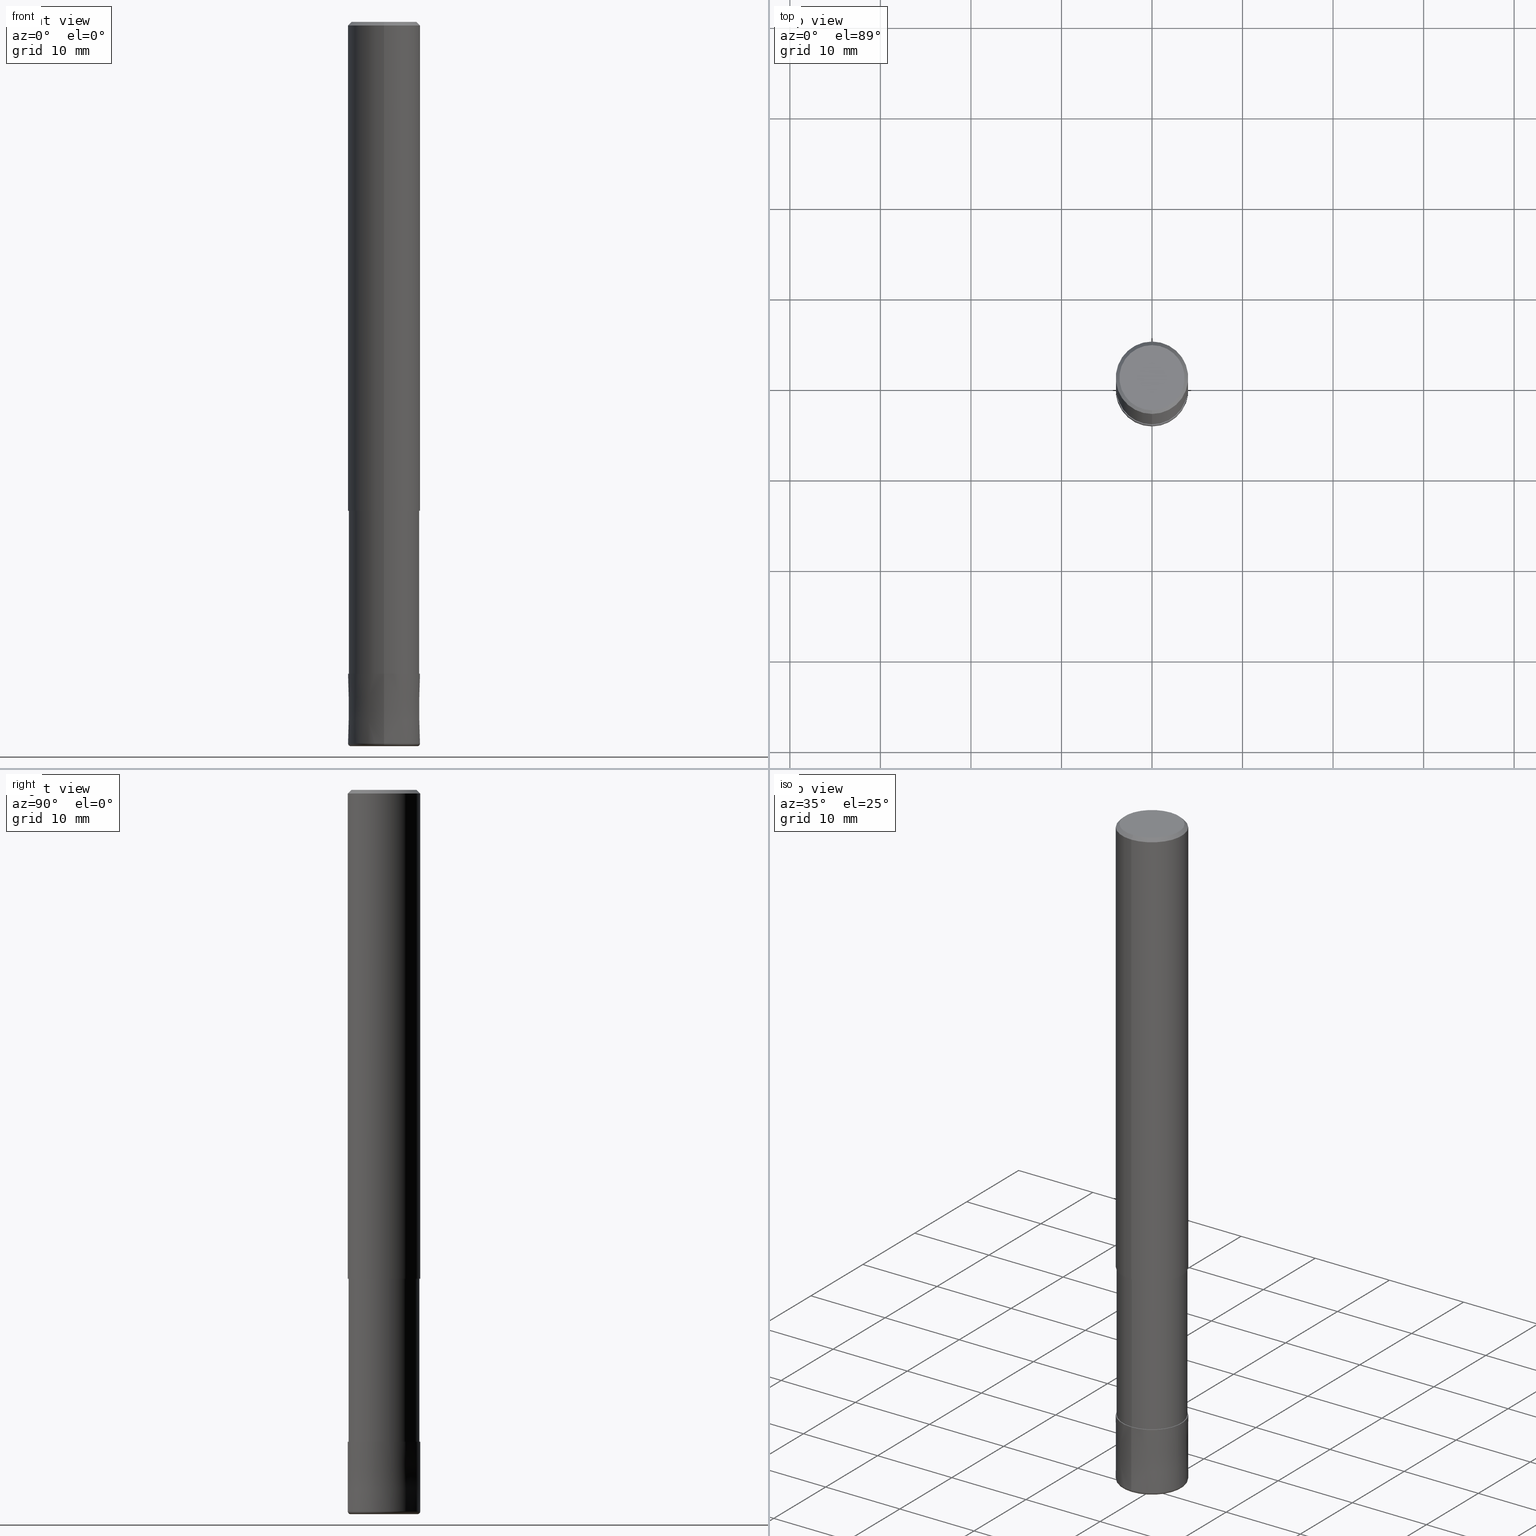
[diagram: canonical four-view strip — front | top / right | iso, engineering-drawing reading convention]
A machine part, canonical four-view strip (front | top / right | iso — engineering-drawing reading convention). The complete STEP part file that produces these views, byte-faithful:
ISO-10303-21;
HEADER;
FILE_DESCRIPTION(('no description'),'unknown implementation level');
FILE_NAME('HHRS6080-03-260-Huellk.stp','  ',('CIMSOURCE GmbH'),('CADClick - KiM GmbH - www.kimweb.de'),'unknown preprocess','ACIS','unknown authorization');
FILE_SCHEMA(('automotive_design'));
ENDSEC;
DATA;
#1=MECHANICAL_DESIGN_GEOMETRIC_PRESENTATION_REPRESENTATION(' ',(#14,#15,#16,#17,#18,#19,#20,#21,#22,#23,#24,#25,#26,#27,#28,#29,#30,#31,#32,#33,#34,#35,#36,#37,#38,#39,#40,#41,#42,#43,#44,#45,#46,#47,#48,#49,#50,#51,#52,#53,#54,#55,#56,#57,#58,#59,#60,#61,#62,#63,#64,#65,#66,#67,#68,#69,#70,#71,#72,#73,#74,#75,#76,#77,#78,#79,#80,#81,#82,#83,#84,#85,#86,#87,#88,#89,#90,#91,#92,#93,#94,#95,#96,#97),#10);
#2=PRODUCT_DEFINITION_CONTEXT('',#98,'design');
#3=APPLICATION_PROTOCOL_DEFINITION('INTERNATIONAL STANDARD','automotive_design',1994,#98);
#4=PRODUCT_CATEGORY_RELATIONSHIP('NONE','NONE',#99,#100);
#5=SHAPE_DEFINITION_REPRESENTATION(#101,#102);
#6=PRODUCT_DEFINITION_CONTEXT('',#103,'design');
#7=APPLICATION_PROTOCOL_DEFINITION('INTERNATIONAL STANDARD','automotive_design',1994,#103);
#8=PRODUCT_CATEGORY_RELATIONSHIP('NONE','NONE',#104,#105);
#9=SHAPE_DEFINITION_REPRESENTATION(#106,#107);
#10= (GEOMETRIC_REPRESENTATION_CONTEXT(3)GLOBAL_UNCERTAINTY_ASSIGNED_CONTEXT((#110))GLOBAL_UNIT_ASSIGNED_CONTEXT((#112,#113,#114))REPRESENTATION_CONTEXT('NONE','WORKSPACE'));
#14=STYLED_ITEM('',(#116),#117);
#15=STYLED_ITEM('',(#118),#119);
#16=STYLED_ITEM('',(#120),#121);
#17=STYLED_ITEM('',(#122),#123);
#18=STYLED_ITEM('',(#124),#125);
#19=STYLED_ITEM('',(#126),#127);
#20=STYLED_ITEM('',(#128),#129);
#21=STYLED_ITEM('',(#130),#131);
#22=STYLED_ITEM('',(#132),#133);
#23=STYLED_ITEM('',(#134),#135);
#24=STYLED_ITEM('',(#136),#137);
#25=STYLED_ITEM('',(#138),#139);
#26=STYLED_ITEM('',(#140),#141);
#27=STYLED_ITEM('',(#142),#143);
#28=STYLED_ITEM('',(#144),#145);
#29=STYLED_ITEM('',(#146),#147);
#30=STYLED_ITEM('',(#148),#149);
#31=STYLED_ITEM('',(#150),#151);
#32=STYLED_ITEM('',(#152),#153);
#33=STYLED_ITEM('',(#154),#155);
#34=STYLED_ITEM('',(#156),#157);
#35=STYLED_ITEM('',(#158),#159);
#36=STYLED_ITEM('',(#160),#161);
#37=STYLED_ITEM('',(#162),#163);
#38=STYLED_ITEM('',(#164),#165);
#39=STYLED_ITEM('',(#166),#167);
#40=STYLED_ITEM('',(#168),#169);
#41=STYLED_ITEM('',(#170),#171);
#42=STYLED_ITEM('',(#172),#173);
#43=STYLED_ITEM('',(#174),#175);
#44=STYLED_ITEM('',(#176),#177);
#45=STYLED_ITEM('',(#178),#179);
#46=STYLED_ITEM('',(#180),#181);
#47=STYLED_ITEM('',(#182),#183);
#48=STYLED_ITEM('',(#184),#185);
#49=STYLED_ITEM('',(#186),#187);
#50=STYLED_ITEM('',(#188),#189);
#51=STYLED_ITEM('',(#190),#191);
#52=STYLED_ITEM('',(#192),#193);
#53=STYLED_ITEM('',(#194),#195);
#54=STYLED_ITEM('',(#196),#197);
#55=STYLED_ITEM('',(#198),#199);
#56=STYLED_ITEM('',(#200),#201);
#57=STYLED_ITEM('',(#202),#203);
#58=STYLED_ITEM('',(#204),#205);
#59=STYLED_ITEM('',(#206),#207);
#60=STYLED_ITEM('',(#208),#209);
#61=STYLED_ITEM('',(#210),#211);
#62=STYLED_ITEM('',(#212),#213);
#63=STYLED_ITEM('',(#214),#215);
#64=STYLED_ITEM('',(#216),#217);
#65=STYLED_ITEM('',(#218),#219);
#66=STYLED_ITEM('',(#220),#221);
#67=STYLED_ITEM('',(#222),#223);
#68=STYLED_ITEM('',(#224),#225);
#69=STYLED_ITEM('',(#226),#227);
#70=STYLED_ITEM('',(#228),#229);
#71=STYLED_ITEM('',(#230),#231);
#72=STYLED_ITEM('',(#232),#233);
#73=STYLED_ITEM('',(#234),#235);
#74=STYLED_ITEM('',(#236),#237);
#75=STYLED_ITEM('',(#238),#239);
#76=STYLED_ITEM('',(#240),#241);
#77=STYLED_ITEM('',(#242),#243);
#78=STYLED_ITEM('',(#244),#245);
#79=STYLED_ITEM('',(#246),#247);
#80=STYLED_ITEM('',(#248),#249);
#81=STYLED_ITEM('',(#250),#251);
#82=STYLED_ITEM('',(#252),#253);
#83=STYLED_ITEM('',(#254),#255);
#84=STYLED_ITEM('',(#256),#257);
#85=STYLED_ITEM('',(#258),#259);
#86=STYLED_ITEM('',(#260),#261);
#87=STYLED_ITEM('',(#262),#263);
#88=STYLED_ITEM('',(#264),#265);
#89=STYLED_ITEM('',(#266),#267);
#90=STYLED_ITEM('',(#268),#269);
#91=STYLED_ITEM('',(#270),#271);
#92=STYLED_ITEM('',(#272),#273);
#93=STYLED_ITEM('',(#274),#275);
#94=STYLED_ITEM('',(#276),#277);
#95=STYLED_ITEM('',(#278),#279);
#96=STYLED_ITEM('',(#280),#281);
#97=STYLED_ITEM('',(#282),#283);
#98=APPLICATION_CONTEXT(' ');
#99=PRODUCT_CATEGORY('part','NONE');
#100=PRODUCT_RELATED_PRODUCT_CATEGORY('detail',' ',(#284));
#101=PRODUCT_DEFINITION_SHAPE('NONE','NONE',#285);
#102=ADVANCED_BREP_SHAPE_REPRESENTATION('1',(#253,#286),#10);
#103=APPLICATION_CONTEXT(' ');
#104=PRODUCT_CATEGORY('part','NONE');
#105=PRODUCT_RELATED_PRODUCT_CATEGORY('detail',' ',(#287));
#106=PRODUCT_DEFINITION_SHAPE('NONE','NONE',#288);
#107=ADVANCED_BREP_SHAPE_REPRESENTATION('2',(#211,#289),#10);
#110=UNCERTAINTY_MEASURE_WITH_UNIT(LENGTH_MEASURE(1.0E-006),#112,'','');
#112= (CONVERSION_BASED_UNIT('MILLIMETRE',#292)LENGTH_UNIT()NAMED_UNIT(#295));
#113= (NAMED_UNIT(#297)PLANE_ANGLE_UNIT()SI_UNIT($,.RADIAN.));
#114= (NAMED_UNIT(#297)SOLID_ANGLE_UNIT()SI_UNIT($,.STERADIAN.));
#116=PRESENTATION_STYLE_ASSIGNMENT((#303));
#117=VERTEX_POINT('',#304);
#118=PRESENTATION_STYLE_ASSIGNMENT((#305));
#119=EDGE_CURVE('',#231,#205,#306,.T.);
#120=PRESENTATION_STYLE_ASSIGNMENT((#307));
#121=EDGE_CURVE('',#127,#221,#308,.T.);
#122=PRESENTATION_STYLE_ASSIGNMENT((#309));
#123=EDGE_CURVE('',#245,#271,#310,.T.);
#124=PRESENTATION_STYLE_ASSIGNMENT((#311));
#125=ADVANCED_FACE('',(#312),#313,.F.);
#126=PRESENTATION_STYLE_ASSIGNMENT((#314));
#127=VERTEX_POINT('',#315);
#128=PRESENTATION_STYLE_ASSIGNMENT((#316));
#129=VERTEX_POINT('',#317);
#130=PRESENTATION_STYLE_ASSIGNMENT((#318));
#131=EDGE_CURVE('',#281,#221,#319,.T.);
#132=PRESENTATION_STYLE_ASSIGNMENT((#320));
#133=EDGE_CURVE('',#223,#273,#321,.T.);
#134=PRESENTATION_STYLE_ASSIGNMENT((#322));
#135=ADVANCED_FACE('',(#323,#324),#325,.T.);
#136=PRESENTATION_STYLE_ASSIGNMENT((#326));
#137=ADVANCED_FACE('',(#327),#328,.T.);
#138=PRESENTATION_STYLE_ASSIGNMENT((#329));
#139=EDGE_CURVE('',#191,#213,#330,.T.);
#140=PRESENTATION_STYLE_ASSIGNMENT((#331));
#141=EDGE_CURVE('',#257,#117,#332,.T.);
#142=PRESENTATION_STYLE_ASSIGNMENT((#333));
#143=EDGE_CURVE('',#281,#117,#334,.T.);
#144=PRESENTATION_STYLE_ASSIGNMENT((#335));
#145=ADVANCED_FACE('',(#336),#337,.T.);
#146=PRESENTATION_STYLE_ASSIGNMENT((#338));
#147=EDGE_CURVE('',#203,#245,#339,.T.);
#148=PRESENTATION_STYLE_ASSIGNMENT((#340));
#149=VERTEX_POINT('',#341);
#150=PRESENTATION_STYLE_ASSIGNMENT((#342));
#151=VERTEX_POINT('',#343);
#152=PRESENTATION_STYLE_ASSIGNMENT((#344));
#153=EDGE_CURVE('',#273,#179,#345,.T.);
#154=PRESENTATION_STYLE_ASSIGNMENT((#346));
#155=VERTEX_POINT('',#347);
#156=PRESENTATION_STYLE_ASSIGNMENT((#348));
#157=ADVANCED_FACE('',(#349,#350),#351,.T.);
#158=PRESENTATION_STYLE_ASSIGNMENT((#352));
#159=ADVANCED_FACE('',(#353),#354,.T.);
#160=PRESENTATION_STYLE_ASSIGNMENT((#355));
#161=EDGE_CURVE('',#151,#155,#356,.T.);
#162=PRESENTATION_STYLE_ASSIGNMENT((#357));
#163=EDGE_CURVE('',#151,#175,#358,.T.);
#164=PRESENTATION_STYLE_ASSIGNMENT((#359));
#165=EDGE_CURVE('',#179,#197,#360,.T.);
#166=PRESENTATION_STYLE_ASSIGNMENT((#361));
#167=ADVANCED_FACE('',(#362,#363),#364,.T.);
#168=PRESENTATION_STYLE_ASSIGNMENT((#365));
#169=EDGE_CURVE('',#127,#193,#366,.T.);
#170=PRESENTATION_STYLE_ASSIGNMENT((#367));
#171=EDGE_CURVE('',#117,#281,#368,.T.);
#172=PRESENTATION_STYLE_ASSIGNMENT((#369));
#173=EDGE_CURVE('',#271,#245,#370,.T.);
#174=PRESENTATION_STYLE_ASSIGNMENT((#371));
#175=VERTEX_POINT('',#372);
#176=PRESENTATION_STYLE_ASSIGNMENT((#373));
#177=EDGE_CURVE('',#231,#149,#374,.T.);
#178=PRESENTATION_STYLE_ASSIGNMENT((#375));
#179=VERTEX_POINT('',#376);
#180=PRESENTATION_STYLE_ASSIGNMENT((#377));
#181=EDGE_CURVE('',#149,#191,#378,.T.);
#182=PRESENTATION_STYLE_ASSIGNMENT((#379));
#183=EDGE_CURVE('',#203,#243,#380,.T.);
#184=PRESENTATION_STYLE_ASSIGNMENT((#381));
#185=ADVANCED_FACE('',(#382),#383,.T.);
#186=PRESENTATION_STYLE_ASSIGNMENT((#384));
#187=EDGE_CURVE('',#175,#151,#385,.T.);
#188=PRESENTATION_STYLE_ASSIGNMENT((#386));
#189=ADVANCED_FACE('',(#387),#388,.T.);
#190=PRESENTATION_STYLE_ASSIGNMENT((#389));
#191=VERTEX_POINT('',#390);
#192=PRESENTATION_STYLE_ASSIGNMENT((#391));
#193=VERTEX_POINT('',#392);
#194=PRESENTATION_STYLE_ASSIGNMENT((#393));
#195=EDGE_CURVE('',#129,#205,#394,.T.);
#196=PRESENTATION_STYLE_ASSIGNMENT((#395));
#197=VERTEX_POINT('',#396);
#198=PRESENTATION_STYLE_ASSIGNMENT((#397));
#199=EDGE_CURVE('',#257,#221,#398,.T.);
#200=PRESENTATION_STYLE_ASSIGNMENT((#399));
#201=EDGE_CURVE('',#221,#257,#400,.T.);
#202=PRESENTATION_STYLE_ASSIGNMENT((#401));
#203=VERTEX_POINT('',#402);
#204=PRESENTATION_STYLE_ASSIGNMENT((#403));
#205=VERTEX_POINT('',#404);
#206=PRESENTATION_STYLE_ASSIGNMENT((#405));
#207=ADVANCED_FACE('',(#406),#407,.T.);
#208=PRESENTATION_STYLE_ASSIGNMENT((#408));
#209=EDGE_CURVE('',#233,#155,#409,.T.);
#210=PRESENTATION_STYLE_ASSIGNMENT((#410));
#211=MANIFOLD_SOLID_BREP('2',#411);
#212=PRESENTATION_STYLE_ASSIGNMENT((#412));
#213=VERTEX_POINT('',#413);
#214=PRESENTATION_STYLE_ASSIGNMENT((#414));
#215=EDGE_CURVE('',#233,#175,#415,.T.);
#216=PRESENTATION_STYLE_ASSIGNMENT((#416));
#217=EDGE_CURVE('',#197,#179,#417,.T.);
#218=PRESENTATION_STYLE_ASSIGNMENT((#418));
#219=ADVANCED_FACE('',(#419),#420,.T.);
#220=PRESENTATION_STYLE_ASSIGNMENT((#421));
#221=VERTEX_POINT('',#422);
#222=PRESENTATION_STYLE_ASSIGNMENT((#423));
#223=VERTEX_POINT('',#424);
#224=PRESENTATION_STYLE_ASSIGNMENT((#425));
#225=EDGE_CURVE('',#197,#223,#426,.T.);
#226=PRESENTATION_STYLE_ASSIGNMENT((#427));
#227=ADVANCED_FACE('',(#428),#429,.T.);
#228=PRESENTATION_STYLE_ASSIGNMENT((#430));
#229=ADVANCED_FACE('',(#431),#432,.T.);
#230=PRESENTATION_STYLE_ASSIGNMENT((#433));
#231=VERTEX_POINT('',#434);
#232=PRESENTATION_STYLE_ASSIGNMENT((#435));
#233=VERTEX_POINT('',#436);
#234=PRESENTATION_STYLE_ASSIGNMENT((#437));
#235=ADVANCED_FACE('',(#438),#439,.T.);
#236=PRESENTATION_STYLE_ASSIGNMENT((#440));
#237=EDGE_CURVE('',#243,#203,#441,.T.);
#238=PRESENTATION_STYLE_ASSIGNMENT((#442));
#239=EDGE_CURVE('',#149,#129,#443,.T.);
#240=PRESENTATION_STYLE_ASSIGNMENT((#444));
#241=ADVANCED_FACE('',(#445,#446),#447,.T.);
#242=PRESENTATION_STYLE_ASSIGNMENT((#448));
#243=VERTEX_POINT('',#449);
#244=PRESENTATION_STYLE_ASSIGNMENT((#450));
#245=VERTEX_POINT('',#451);
#246=PRESENTATION_STYLE_ASSIGNMENT((#452));
#247=EDGE_CURVE('',#271,#243,#453,.T.);
#248=PRESENTATION_STYLE_ASSIGNMENT((#454));
#249=ADVANCED_FACE('',(#455),#456,.T.);
#250=PRESENTATION_STYLE_ASSIGNMENT((#457));
#251=EDGE_CURVE('',#129,#149,#458,.T.);
#252=PRESENTATION_STYLE_ASSIGNMENT((#459));
#253=MANIFOLD_SOLID_BREP('1',#460);
#254=PRESENTATION_STYLE_ASSIGNMENT((#461));
#255=ADVANCED_FACE('',(#462),#463,.T.);
#256=PRESENTATION_STYLE_ASSIGNMENT((#464));
#257=VERTEX_POINT('',#465);
#258=PRESENTATION_STYLE_ASSIGNMENT((#466));
#259=EDGE_CURVE('',#193,#127,#467,.T.);
#260=PRESENTATION_STYLE_ASSIGNMENT((#468));
#261=EDGE_CURVE('',#273,#223,#469,.T.);
#262=PRESENTATION_STYLE_ASSIGNMENT((#470));
#263=EDGE_CURVE('',#155,#233,#471,.T.);
#264=PRESENTATION_STYLE_ASSIGNMENT((#472));
#265=ADVANCED_FACE('',(#473),#474,.T.);
#266=PRESENTATION_STYLE_ASSIGNMENT((#475));
#267=ADVANCED_FACE('',(#476),#477,.F.);
#268=PRESENTATION_STYLE_ASSIGNMENT((#478));
#269=EDGE_CURVE('',#213,#191,#479,.T.);
#270=PRESENTATION_STYLE_ASSIGNMENT((#480));
#271=VERTEX_POINT('',#481);
#272=PRESENTATION_STYLE_ASSIGNMENT((#482));
#273=VERTEX_POINT('',#483);
#274=PRESENTATION_STYLE_ASSIGNMENT((#484));
#275=EDGE_CURVE('',#205,#231,#485,.T.);
#276=PRESENTATION_STYLE_ASSIGNMENT((#486));
#277=EDGE_CURVE('',#213,#129,#487,.T.);
#278=PRESENTATION_STYLE_ASSIGNMENT((#488));
#279=ADVANCED_FACE('',(#489),#490,.T.);
#280=PRESENTATION_STYLE_ASSIGNMENT((#491));
#281=VERTEX_POINT('',#492);
#282=PRESENTATION_STYLE_ASSIGNMENT((#493));
#283=EDGE_CURVE('',#257,#193,#494,.T.);
#284=PRODUCT('1','1','PART-1-DESC',(#495));
#285=PRODUCT_DEFINITION('NONE','NONE',#496,#2);
#286=AXIS2_PLACEMENT_3D('',#497,#498,#499);
#287=PRODUCT('2','2','PART-2-DESC',(#500));
#288=PRODUCT_DEFINITION('NONE','NONE',#501,#6);
#289=AXIS2_PLACEMENT_3D('',#502,#503,#504);
#292=LENGTH_MEASURE_WITH_UNIT(LENGTH_MEASURE(1.0),#505);
#295=DIMENSIONAL_EXPONENTS(1.0,0.0,0.0,0.0,0.0,0.0,0.0);
#297=DIMENSIONAL_EXPONENTS(0.0,0.0,0.0,0.0,0.0,0.0,0.0);
#303=POINT_STYLE(' ',#506,POSITIVE_LENGTH_MEASURE(1.0E-006),#507);
#304=CARTESIAN_POINT('',(4.5310435091428E-016,-3.7,-80.0));
#305=CURVE_STYLE('',#508,POSITIVE_LENGTH_MEASURE(1.0E-006),#509);
#306=CIRCLE('',#510,4.0);
#307=CURVE_STYLE('',#511,POSITIVE_LENGTH_MEASURE(1.0E-006),#512);
#308=LINE('',#513,#514);
#309=CURVE_STYLE('',#515,POSITIVE_LENGTH_MEASURE(1.0E-006),#516);
#310=CIRCLE('',#517,1.8);
#311=SURFACE_STYLE_USAGE(.BOTH.,#518);
#312=FACE_OUTER_BOUND('',#519,.T.);
#313=CYLINDRICAL_SURFACE('',#520,1.8);
#314=POINT_STYLE(' ',#521,POSITIVE_LENGTH_MEASURE(1.0E-006),#522);
#315=CARTESIAN_POINT('',(0.0,3.9999,-72.0));
#316=POINT_STYLE(' ',#523,POSITIVE_LENGTH_MEASURE(1.0E-006),#524);
#317=CARTESIAN_POINT('',(0.0,4.0,-0.399999999999999));
#318=CURVE_STYLE('',#525,POSITIVE_LENGTH_MEASURE(1.0E-006),#526);
#319=CIRCLE('',#527,0.300000000000002);
#320=CURVE_STYLE('',#528,POSITIVE_LENGTH_MEASURE(1.0E-006),#529);
#321=CIRCLE('',#530,1.8);
#322=SURFACE_STYLE_USAGE(.BOTH.,#531);
#323=FACE_BOUND('',#532,.T.);
#324=FACE_OUTER_BOUND('',#533,.T.);
#325=PLANE('',#534);
#326=SURFACE_STYLE_USAGE(.BOTH.,#535);
#327=FACE_OUTER_BOUND('',#536,.T.);
#328=CYLINDRICAL_SURFACE('',#537,4.0);
#329=CURVE_STYLE('',#538,POSITIVE_LENGTH_MEASURE(1.0E-006),#539);
#330=CIRCLE('',#540,3.6);
#331=CURVE_STYLE('',#541,POSITIVE_LENGTH_MEASURE(1.0E-006),#542);
#332=CIRCLE('',#543,0.300000000000002);
#333=CURVE_STYLE('',#544,POSITIVE_LENGTH_MEASURE(1.0E-006),#545);
#334=CIRCLE('',#546,3.7);
#335=SURFACE_STYLE_USAGE(.BOTH.,#547);
#336=FACE_OUTER_BOUND('',#548,.T.);
#337=CYLINDRICAL_SURFACE('',#549,3.90495);
#338=CURVE_STYLE('',#550,POSITIVE_LENGTH_MEASURE(1.0E-006),#551);
#339=LINE('',#552,#553);
#340=POINT_STYLE(' ',#554,POSITIVE_LENGTH_MEASURE(1.0E-006),#555);
#341=CARTESIAN_POINT('',(4.89842541528951E-016,-4.0,-0.399999999999999));
#342=POINT_STYLE(' ',#556,POSITIVE_LENGTH_MEASURE(1.0E-006),#557);
#343=CARTESIAN_POINT('',(0.0,3.90495,-54.0));
#344=CURVE_STYLE('',#558,POSITIVE_LENGTH_MEASURE(1.0E-006),#559);
#345=LINE('',#560,#561);
#346=POINT_STYLE(' ',#562,POSITIVE_LENGTH_MEASURE(1.0E-006),#563);
#347=CARTESIAN_POINT('',(0.0,3.90495,-72.0));
#348=SURFACE_STYLE_USAGE(.BOTH.,#564);
#349=FACE_BOUND('',#565,.T.);
#350=FACE_OUTER_BOUND('',#566,.T.);
#351=PLANE('',#567);
#352=SURFACE_STYLE_USAGE(.BOTH.,#568);
#353=FACE_OUTER_BOUND('',#569,.T.);
#354=CYLINDRICAL_SURFACE('',#570,3.90495);
#355=CURVE_STYLE('',#571,POSITIVE_LENGTH_MEASURE(1.0E-006),#572);
#356=LINE('',#573,#574);
#357=CURVE_STYLE('',#575,POSITIVE_LENGTH_MEASURE(1.0E-006),#576);
#358=CIRCLE('',#577,3.90495);
#359=CURVE_STYLE('',#578,POSITIVE_LENGTH_MEASURE(1.0E-006),#579);
#360=CIRCLE('',#580,1.8);
#361=SURFACE_STYLE_USAGE(.BOTH.,#581);
#362=FACE_OUTER_BOUND('',#582,.T.);
#363=FACE_BOUND('',#583,.T.);
#364=PLANE('',#584);
#365=CURVE_STYLE('',#585,POSITIVE_LENGTH_MEASURE(1.0E-006),#586);
#366=CIRCLE('',#587,3.9999);
#367=CURVE_STYLE('',#588,POSITIVE_LENGTH_MEASURE(1.0E-006),#589);
#368=CIRCLE('',#590,3.7);
#369=CURVE_STYLE('',#591,POSITIVE_LENGTH_MEASURE(1.0E-006),#592);
#370=CIRCLE('',#593,1.8);
#371=POINT_STYLE(' ',#594,POSITIVE_LENGTH_MEASURE(1.0E-006),#595);
#372=CARTESIAN_POINT('',(4.78202658135869E-016,-3.90495,-54.0));
#373=CURVE_STYLE('',#596,POSITIVE_LENGTH_MEASURE(1.0E-006),#597);
#374=LINE('',#598,#599);
#375=POINT_STYLE(' ',#600,POSITIVE_LENGTH_MEASURE(1.0E-006),#601);
#376=CARTESIAN_POINT('',(0.0,1.8,-80.0));
#377=CURVE_STYLE('',#602,POSITIVE_LENGTH_MEASURE(1.0E-006),#603);
#378=LINE('',#604,#605);
#379=CURVE_STYLE('',#606,POSITIVE_LENGTH_MEASURE(1.0E-006),#607);
#380=CIRCLE('',#608,1.8);
#381=SURFACE_STYLE_USAGE(.BOTH.,#609);
#382=FACE_OUTER_BOUND('',#610,.T.);
#383=TOROIDAL_SURFACE('',#611,3.7,0.300000000000002);
#384=CURVE_STYLE('',#612,POSITIVE_LENGTH_MEASURE(1.0E-006),#613);
#385=CIRCLE('',#614,3.90495);
#386=SURFACE_STYLE_USAGE(.BOTH.,#615);
#387=FACE_OUTER_BOUND('',#616,.T.);
#388=CYLINDRICAL_SURFACE('',#617,4.0);
#389=POINT_STYLE(' ',#618,POSITIVE_LENGTH_MEASURE(1.0E-006),#619);
#390=CARTESIAN_POINT('',(4.40858287376056E-016,-3.6,0.0));
#391=POINT_STYLE(' ',#620,POSITIVE_LENGTH_MEASURE(1.0E-006),#621);
#392=CARTESIAN_POINT('',(4.89830295465413E-016,-3.9999,-72.0));
#393=CURVE_STYLE('',#622,POSITIVE_LENGTH_MEASURE(1.0E-006),#623);
#394=LINE('',#624,#625);
#395=POINT_STYLE(' ',#626,POSITIVE_LENGTH_MEASURE(1.0E-006),#627);
#396=CARTESIAN_POINT('',(2.20429143688028E-016,-1.8,-80.0));
#397=CURVE_STYLE('',#628,POSITIVE_LENGTH_MEASURE(1.0E-006),#629);
#398=CIRCLE('',#630,4.0);
#399=CURVE_STYLE('',#631,POSITIVE_LENGTH_MEASURE(1.0E-006),#632);
#400=CIRCLE('',#633,4.0);
#401=POINT_STYLE(' ',#634,POSITIVE_LENGTH_MEASURE(1.0E-006),#635);
#402=CARTESIAN_POINT('',(2.20429143688028E-016,-1.8,-79.9));
#403=POINT_STYLE(' ',#636,POSITIVE_LENGTH_MEASURE(1.0E-006),#637);
#404=CARTESIAN_POINT('',(0.0,4.0,-54.0));
#405=SURFACE_STYLE_USAGE(.BOTH.,#638);
#406=FACE_OUTER_BOUND('',#639,.T.);
#407=TOROIDAL_SURFACE('',#640,3.7,0.300000000000002);
#408=CURVE_STYLE('',#641,POSITIVE_LENGTH_MEASURE(1.0E-006),#642);
#409=CIRCLE('',#643,3.90495);
#410=SURFACE_STYLE_USAGE(.BOTH.,#644);
#411=CLOSED_SHELL('',(#267,#185,#235,#167,#279,#207,#157,#125));
#412=POINT_STYLE(' ',#645,POSITIVE_LENGTH_MEASURE(1.0E-006),#646);
#413=CARTESIAN_POINT('',(0.0,3.6,0.0));
#414=CURVE_STYLE('',#647,POSITIVE_LENGTH_MEASURE(1.0E-006),#648);
#415=LINE('',#649,#650);
#416=CURVE_STYLE('',#651,POSITIVE_LENGTH_MEASURE(1.0E-006),#652);
#417=CIRCLE('',#653,1.8);
#418=SURFACE_STYLE_USAGE(.BOTH.,#654);
#419=FACE_OUTER_BOUND('',#655,.T.);
#420=CYLINDRICAL_SURFACE('',#656,1.8);
#421=POINT_STYLE(' ',#657,POSITIVE_LENGTH_MEASURE(1.0E-006),#658);
#422=CARTESIAN_POINT('',(0.0,4.0,-79.7));
#423=POINT_STYLE(' ',#659,POSITIVE_LENGTH_MEASURE(1.0E-006),#660);
#424=CARTESIAN_POINT('',(2.20429143688028E-016,-1.8,-72.0));
#425=CURVE_STYLE('',#661,POSITIVE_LENGTH_MEASURE(1.0E-006),#662);
#426=LINE('',#663,#664);
#427=SURFACE_STYLE_USAGE(.BOTH.,#665);
#428=FACE_OUTER_BOUND('',#666,.T.);
#429=CONICAL_SURFACE('',#667,3.8,0.78539816339745);
#430=SURFACE_STYLE_USAGE(.BOTH.,#668);
#431=FACE_OUTER_BOUND('',#669,.T.);
#432=PLANE('',#670);
#433=POINT_STYLE(' ',#671,POSITIVE_LENGTH_MEASURE(1.0E-006),#672);
#434=CARTESIAN_POINT('',(4.89842541528951E-016,-4.0,-54.0));
#435=POINT_STYLE(' ',#673,POSITIVE_LENGTH_MEASURE(1.0E-006),#674);
#436=CARTESIAN_POINT('',(4.78202658135869E-016,-3.90495,-72.0));
#437=SURFACE_STYLE_USAGE(.BOTH.,#675);
#438=FACE_OUTER_BOUND('',#676,.T.);
#439=CONICAL_SURFACE('',#677,3.99995,1.29870129863103E-005);
#440=CURVE_STYLE('',#678,POSITIVE_LENGTH_MEASURE(1.0E-006),#679);
#441=CIRCLE('',#680,1.8);
#442=CURVE_STYLE('',#681,POSITIVE_LENGTH_MEASURE(1.0E-006),#682);
#443=CIRCLE('',#683,4.0);
#444=SURFACE_STYLE_USAGE(.BOTH.,#684);
#445=FACE_OUTER_BOUND('',#685,.T.);
#446=FACE_BOUND('',#686,.T.);
#447=PLANE('',#687);
#448=POINT_STYLE(' ',#688,POSITIVE_LENGTH_MEASURE(1.0E-006),#689);
#449=CARTESIAN_POINT('',(0.0,1.8,-79.9));
#450=POINT_STYLE(' ',#690,POSITIVE_LENGTH_MEASURE(1.0E-006),#691);
#451=CARTESIAN_POINT('',(2.20429143688028E-016,-1.8,-72.0));
#452=CURVE_STYLE('',#692,POSITIVE_LENGTH_MEASURE(1.0E-006),#693);
#453=LINE('',#694,#695);
#454=SURFACE_STYLE_USAGE(.BOTH.,#696);
#455=FACE_OUTER_BOUND('',#697,.T.);
#456=PLANE('',#698);
#457=CURVE_STYLE('',#699,POSITIVE_LENGTH_MEASURE(1.0E-006),#700);
#458=CIRCLE('',#701,4.0);
#459=SURFACE_STYLE_USAGE(.BOTH.,#702);
#460=CLOSED_SHELL('',(#265,#145,#189,#227,#241,#249,#255,#137,#159,#135,#219,#229));
#461=SURFACE_STYLE_USAGE(.BOTH.,#703);
#462=FACE_OUTER_BOUND('',#704,.T.);
#463=CONICAL_SURFACE('',#705,3.8,0.78539816339745);
#464=POINT_STYLE(' ',#706,POSITIVE_LENGTH_MEASURE(1.0E-006),#707);
#465=CARTESIAN_POINT('',(4.89842541528951E-016,-4.0,-79.7));
#466=CURVE_STYLE('',#708,POSITIVE_LENGTH_MEASURE(1.0E-006),#709);
#467=CIRCLE('',#710,3.9999);
#468=CURVE_STYLE('',#711,POSITIVE_LENGTH_MEASURE(1.0E-006),#712);
#469=CIRCLE('',#713,1.8);
#470=CURVE_STYLE('',#714,POSITIVE_LENGTH_MEASURE(1.0E-006),#715);
#471=CIRCLE('',#716,3.90495);
#472=SURFACE_STYLE_USAGE(.BOTH.,#717);
#473=FACE_OUTER_BOUND('',#718,.T.);
#474=CYLINDRICAL_SURFACE('',#719,1.8);
#475=SURFACE_STYLE_USAGE(.BOTH.,#720);
#476=FACE_OUTER_BOUND('',#721,.T.);
#477=CYLINDRICAL_SURFACE('',#722,1.8);
#478=CURVE_STYLE('',#723,POSITIVE_LENGTH_MEASURE(1.0E-006),#724);
#479=CIRCLE('',#725,3.6);
#480=POINT_STYLE(' ',#726,POSITIVE_LENGTH_MEASURE(1.0E-006),#727);
#481=CARTESIAN_POINT('',(0.0,1.8,-72.0));
#482=POINT_STYLE(' ',#728,POSITIVE_LENGTH_MEASURE(1.0E-006),#729);
#483=CARTESIAN_POINT('',(0.0,1.8,-72.0));
#484=CURVE_STYLE('',#730,POSITIVE_LENGTH_MEASURE(1.0E-006),#731);
#485=CIRCLE('',#732,4.0);
#486=CURVE_STYLE('',#733,POSITIVE_LENGTH_MEASURE(1.0E-006),#734);
#487=LINE('',#735,#736);
#488=SURFACE_STYLE_USAGE(.BOTH.,#737);
#489=FACE_OUTER_BOUND('',#738,.T.);
#490=CONICAL_SURFACE('',#739,3.99995,1.29870129863103E-005);
#491=POINT_STYLE(' ',#740,POSITIVE_LENGTH_MEASURE(1.0E-006),#741);
#492=CARTESIAN_POINT('',(0.0,3.7,-80.0));
#493=CURVE_STYLE('',#742,POSITIVE_LENGTH_MEASURE(1.0E-006),#743);
#494=LINE('',#744,#745);
#495=PRODUCT_CONTEXT('',#98,'mechanical');
#496=PRODUCT_DEFINITION_FORMATION_WITH_SPECIFIED_SOURCE(' ','NONE',#284,.NOT_KNOWN.);
#497=CARTESIAN_POINT('',(0.0,0.0,0.0));
#498=DIRECTION('',(0.0,0.0,1.0));
#499=DIRECTION('',(1.0,0.0,0.0));
#500=PRODUCT_CONTEXT('',#103,'mechanical');
#501=PRODUCT_DEFINITION_FORMATION_WITH_SPECIFIED_SOURCE(' ','NONE',#287,.NOT_KNOWN.);
#502=CARTESIAN_POINT('',(0.0,0.0,0.0));
#503=DIRECTION('',(0.0,0.0,1.0));
#504=DIRECTION('',(1.0,0.0,0.0));
#505= (NAMED_UNIT(#295)LENGTH_UNIT()SI_UNIT(.MILLI.,.METRE.));
#506=PRE_DEFINED_MARKER('');
#507=COLOUR_RGB('',0.800000011920929,0.800000011920929,0.800000011920929);
#508=DRAUGHTING_PRE_DEFINED_CURVE_FONT('continuous');
#509=COLOUR_RGB('',0.498039215803146,0.498039215803146,0.498039215803146);
#510=AXIS2_PLACEMENT_3D('',#747,#748,#749);
#511=DRAUGHTING_PRE_DEFINED_CURVE_FONT('continuous');
#512=COLOUR_RGB('',0.800000011920929,0.800000011920929,0.800000011920929);
#513=CARTESIAN_POINT('',(-4.89836418497182E-016,3.99995,-75.85));
#514=VECTOR('',#750,1.0);
#515=DRAUGHTING_PRE_DEFINED_CURVE_FONT('continuous');
#516=COLOUR_RGB('',0.498039215803146,0.498039215803146,0.498039215803146);
#517=AXIS2_PLACEMENT_3D('',#751,#752,#753);
#518=SURFACE_SIDE_STYLE('',(#754));
#519=EDGE_LOOP('',(#755,#756,#757,#758));
#520=AXIS2_PLACEMENT_3D('',#759,#760,#761);
#521=PRE_DEFINED_MARKER('');
#522=COLOUR_RGB('',0.800000011920929,0.800000011920929,0.800000011920929);
#523=PRE_DEFINED_MARKER('');
#524=COLOUR_RGB('',0.498039215803146,0.498039215803146,0.498039215803146);
#525=DRAUGHTING_PRE_DEFINED_CURVE_FONT('continuous');
#526=COLOUR_RGB('',0.800000011920929,0.800000011920929,0.800000011920929);
#527=AXIS2_PLACEMENT_3D('',#762,#763,#764);
#528=DRAUGHTING_PRE_DEFINED_CURVE_FONT('continuous');
#529=COLOUR_RGB('',0.800000011920929,0.800000011920929,0.800000011920929);
#530=AXIS2_PLACEMENT_3D('',#765,#766,#767);
#531=SURFACE_SIDE_STYLE('',(#768));
#532=EDGE_LOOP('',(#769,#770));
#533=EDGE_LOOP('',(#771,#772));
#534=AXIS2_PLACEMENT_3D('',#773,#774,#775);
#535=SURFACE_SIDE_STYLE('',(#776));
#536=EDGE_LOOP('',(#777,#778,#779,#780));
#537=AXIS2_PLACEMENT_3D('',#781,#782,#783);
#538=DRAUGHTING_PRE_DEFINED_CURVE_FONT('continuous');
#539=COLOUR_RGB('',0.498039215803146,0.498039215803146,0.498039215803146);
#540=AXIS2_PLACEMENT_3D('',#784,#785,#786);
#541=DRAUGHTING_PRE_DEFINED_CURVE_FONT('continuous');
#542=COLOUR_RGB('',0.800000011920929,0.800000011920929,0.800000011920929);
#543=AXIS2_PLACEMENT_3D('',#787,#788,#789);
#544=DRAUGHTING_PRE_DEFINED_CURVE_FONT('continuous');
#545=COLOUR_RGB('',0.800000011920929,0.800000011920929,0.800000011920929);
#546=AXIS2_PLACEMENT_3D('',#790,#791,#792);
#547=SURFACE_SIDE_STYLE('',(#793));
#548=EDGE_LOOP('',(#794,#795,#796,#797));
#549=AXIS2_PLACEMENT_3D('',#798,#799,#800);
#550=DRAUGHTING_PRE_DEFINED_CURVE_FONT('continuous');
#551=COLOUR_RGB('',0.498039215803146,0.498039215803146,0.498039215803146);
#552=CARTESIAN_POINT('',(2.20429143688028E-016,-1.8,-75.95));
#553=VECTOR('',#801,1.0);
#554=PRE_DEFINED_MARKER('');
#555=COLOUR_RGB('',0.498039215803146,0.498039215803146,0.498039215803146);
#556=PRE_DEFINED_MARKER('');
#557=COLOUR_RGB('',0.498039215803146,0.498039215803146,0.498039215803146);
#558=DRAUGHTING_PRE_DEFINED_CURVE_FONT('continuous');
#559=COLOUR_RGB('',0.800000011920929,0.800000011920929,0.800000011920929);
#560=CARTESIAN_POINT('',(-2.20429143688028E-016,1.8,-76.0));
#561=VECTOR('',#802,1.0);
#562=PRE_DEFINED_MARKER('');
#563=COLOUR_RGB('',0.498039215803146,0.498039215803146,0.498039215803146);
#564=SURFACE_SIDE_STYLE('',(#803));
#565=EDGE_LOOP('',(#804,#805));
#566=EDGE_LOOP('',(#806,#807));
#567=AXIS2_PLACEMENT_3D('',#808,#809,#810);
#568=SURFACE_SIDE_STYLE('',(#811));
#569=EDGE_LOOP('',(#812,#813,#814,#815));
#570=AXIS2_PLACEMENT_3D('',#816,#817,#818);
#571=DRAUGHTING_PRE_DEFINED_CURVE_FONT('continuous');
#572=COLOUR_RGB('',0.498039215803146,0.498039215803146,0.498039215803146);
#573=CARTESIAN_POINT('',(-4.78202658135869E-016,3.90495,-63.0));
#574=VECTOR('',#819,1.0);
#575=DRAUGHTING_PRE_DEFINED_CURVE_FONT('continuous');
#576=COLOUR_RGB('',0.498039215803146,0.498039215803146,0.498039215803146);
#577=AXIS2_PLACEMENT_3D('',#820,#821,#822);
#578=DRAUGHTING_PRE_DEFINED_CURVE_FONT('continuous');
#579=COLOUR_RGB('',0.800000011920929,0.800000011920929,0.800000011920929);
#580=AXIS2_PLACEMENT_3D('',#823,#824,#825);
#581=SURFACE_SIDE_STYLE('',(#826));
#582=EDGE_LOOP('',(#827,#828));
#583=EDGE_LOOP('',(#829,#830));
#584=AXIS2_PLACEMENT_3D('',#831,#832,#833);
#585=DRAUGHTING_PRE_DEFINED_CURVE_FONT('continuous');
#586=COLOUR_RGB('',0.800000011920929,0.800000011920929,0.800000011920929);
#587=AXIS2_PLACEMENT_3D('',#834,#835,#836);
#588=DRAUGHTING_PRE_DEFINED_CURVE_FONT('continuous');
#589=COLOUR_RGB('',0.800000011920929,0.800000011920929,0.800000011920929);
#590=AXIS2_PLACEMENT_3D('',#837,#838,#839);
#591=DRAUGHTING_PRE_DEFINED_CURVE_FONT('continuous');
#592=COLOUR_RGB('',0.498039215803146,0.498039215803146,0.498039215803146);
#593=AXIS2_PLACEMENT_3D('',#840,#841,#842);
#594=PRE_DEFINED_MARKER('');
#595=COLOUR_RGB('',0.498039215803146,0.498039215803146,0.498039215803146);
#596=DRAUGHTING_PRE_DEFINED_CURVE_FONT('continuous');
#597=COLOUR_RGB('',0.498039215803146,0.498039215803146,0.498039215803146);
#598=CARTESIAN_POINT('',(4.89842541528951E-016,-4.0,-27.2));
#599=VECTOR('',#843,1.0);
#600=PRE_DEFINED_MARKER('');
#601=COLOUR_RGB('',0.800000011920929,0.800000011920929,0.800000011920929);
#602=DRAUGHTING_PRE_DEFINED_CURVE_FONT('continuous');
#603=COLOUR_RGB('',0.498039215803146,0.498039215803146,0.498039215803146);
#604=CARTESIAN_POINT('',(4.65350414452503E-016,-3.8,-0.200000000000003));
#605=VECTOR('',#844,1.0);
#606=DRAUGHTING_PRE_DEFINED_CURVE_FONT('continuous');
#607=COLOUR_RGB('',0.498039215803146,0.498039215803146,0.498039215803146);
#608=AXIS2_PLACEMENT_3D('',#845,#846,#847);
#609=SURFACE_SIDE_STYLE('',(#848));
#610=EDGE_LOOP('',(#849,#850,#851,#852));
#611=AXIS2_PLACEMENT_3D('',#853,#854,#855);
#612=DRAUGHTING_PRE_DEFINED_CURVE_FONT('continuous');
#613=COLOUR_RGB('',0.498039215803146,0.498039215803146,0.498039215803146);
#614=AXIS2_PLACEMENT_3D('',#856,#857,#858);
#615=SURFACE_SIDE_STYLE('',(#859));
#616=EDGE_LOOP('',(#860,#861,#862,#863));
#617=AXIS2_PLACEMENT_3D('',#864,#865,#866);
#618=PRE_DEFINED_MARKER('');
#619=COLOUR_RGB('',0.498039215803146,0.498039215803146,0.498039215803146);
#620=PRE_DEFINED_MARKER('');
#621=COLOUR_RGB('',0.800000011920929,0.800000011920929,0.800000011920929);
#622=DRAUGHTING_PRE_DEFINED_CURVE_FONT('continuous');
#623=COLOUR_RGB('',0.498039215803146,0.498039215803146,0.498039215803146);
#624=CARTESIAN_POINT('',(-4.89842541528951E-016,4.0,-27.2));
#625=VECTOR('',#867,1.0);
#626=PRE_DEFINED_MARKER('');
#627=COLOUR_RGB('',0.800000011920929,0.800000011920929,0.800000011920929);
#628=DRAUGHTING_PRE_DEFINED_CURVE_FONT('continuous');
#629=COLOUR_RGB('',0.800000011920929,0.800000011920929,0.800000011920929);
#630=AXIS2_PLACEMENT_3D('',#868,#869,#870);
#631=DRAUGHTING_PRE_DEFINED_CURVE_FONT('continuous');
#632=COLOUR_RGB('',0.800000011920929,0.800000011920929,0.800000011920929);
#633=AXIS2_PLACEMENT_3D('',#871,#872,#873);
#634=PRE_DEFINED_MARKER('');
#635=COLOUR_RGB('',0.498039215803146,0.498039215803146,0.498039215803146);
#636=PRE_DEFINED_MARKER('');
#637=COLOUR_RGB('',0.498039215803146,0.498039215803146,0.498039215803146);
#638=SURFACE_SIDE_STYLE('',(#874));
#639=EDGE_LOOP('',(#875,#876,#877,#878));
#640=AXIS2_PLACEMENT_3D('',#879,#880,#881);
#641=DRAUGHTING_PRE_DEFINED_CURVE_FONT('continuous');
#642=COLOUR_RGB('',0.498039215803146,0.498039215803146,0.498039215803146);
#643=AXIS2_PLACEMENT_3D('',#882,#883,#884);
#644=SURFACE_SIDE_STYLE('',(#885));
#645=PRE_DEFINED_MARKER('');
#646=COLOUR_RGB('',0.498039215803146,0.498039215803146,0.498039215803146);
#647=DRAUGHTING_PRE_DEFINED_CURVE_FONT('continuous');
#648=COLOUR_RGB('',0.498039215803146,0.498039215803146,0.498039215803146);
#649=CARTESIAN_POINT('',(4.78202658135869E-016,-3.90495,-63.0));
#650=VECTOR('',#886,1.0);
#651=DRAUGHTING_PRE_DEFINED_CURVE_FONT('continuous');
#652=COLOUR_RGB('',0.800000011920929,0.800000011920929,0.800000011920929);
#653=AXIS2_PLACEMENT_3D('',#887,#888,#889);
#654=SURFACE_SIDE_STYLE('',(#890));
#655=EDGE_LOOP('',(#891,#892,#893,#894));
#656=AXIS2_PLACEMENT_3D('',#895,#896,#897);
#657=PRE_DEFINED_MARKER('');
#658=COLOUR_RGB('',0.800000011920929,0.800000011920929,0.800000011920929);
#659=PRE_DEFINED_MARKER('');
#660=COLOUR_RGB('',0.800000011920929,0.800000011920929,0.800000011920929);
#661=DRAUGHTING_PRE_DEFINED_CURVE_FONT('continuous');
#662=COLOUR_RGB('',0.800000011920929,0.800000011920929,0.800000011920929);
#663=CARTESIAN_POINT('',(2.20429143688028E-016,-1.8,-76.0));
#664=VECTOR('',#898,1.0);
#665=SURFACE_SIDE_STYLE('',(#899));
#666=EDGE_LOOP('',(#900,#901,#902,#903));
#667=AXIS2_PLACEMENT_3D('',#904,#905,#906);
#668=SURFACE_SIDE_STYLE('',(#907));
#669=EDGE_LOOP('',(#908,#909));
#670=AXIS2_PLACEMENT_3D('',#910,#911,#912);
#671=PRE_DEFINED_MARKER('');
#672=COLOUR_RGB('',0.498039215803146,0.498039215803146,0.498039215803146);
#673=PRE_DEFINED_MARKER('');
#674=COLOUR_RGB('',0.498039215803146,0.498039215803146,0.498039215803146);
#675=SURFACE_SIDE_STYLE('',(#913));
#676=EDGE_LOOP('',(#914,#915,#916,#917));
#677=AXIS2_PLACEMENT_3D('',#918,#919,#920);
#678=DRAUGHTING_PRE_DEFINED_CURVE_FONT('continuous');
#679=COLOUR_RGB('',0.498039215803146,0.498039215803146,0.498039215803146);
#680=AXIS2_PLACEMENT_3D('',#921,#922,#923);
#681=DRAUGHTING_PRE_DEFINED_CURVE_FONT('continuous');
#682=COLOUR_RGB('',0.498039215803146,0.498039215803146,0.498039215803146);
#683=AXIS2_PLACEMENT_3D('',#924,#925,#926);
#684=SURFACE_SIDE_STYLE('',(#927));
#685=EDGE_LOOP('',(#928,#929));
#686=EDGE_LOOP('',(#930,#931));
#687=AXIS2_PLACEMENT_3D('',#932,#933,#934);
#688=PRE_DEFINED_MARKER('');
#689=COLOUR_RGB('',0.498039215803146,0.498039215803146,0.498039215803146);
#690=PRE_DEFINED_MARKER('');
#691=COLOUR_RGB('',0.498039215803146,0.498039215803146,0.498039215803146);
#692=DRAUGHTING_PRE_DEFINED_CURVE_FONT('continuous');
#693=COLOUR_RGB('',0.498039215803146,0.498039215803146,0.498039215803146);
#694=CARTESIAN_POINT('',(-2.20429143688028E-016,1.8,-75.95));
#695=VECTOR('',#935,1.0);
#696=SURFACE_SIDE_STYLE('',(#936));
#697=EDGE_LOOP('',(#937,#938));
#698=AXIS2_PLACEMENT_3D('',#939,#940,#941);
#699=DRAUGHTING_PRE_DEFINED_CURVE_FONT('continuous');
#700=COLOUR_RGB('',0.498039215803146,0.498039215803146,0.498039215803146);
#701=AXIS2_PLACEMENT_3D('',#942,#943,#944);
#702=SURFACE_SIDE_STYLE('',(#945));
#703=SURFACE_SIDE_STYLE('',(#946));
#704=EDGE_LOOP('',(#947,#948,#949,#950));
#705=AXIS2_PLACEMENT_3D('',#951,#952,#953);
#706=PRE_DEFINED_MARKER('');
#707=COLOUR_RGB('',0.800000011920929,0.800000011920929,0.800000011920929);
#708=DRAUGHTING_PRE_DEFINED_CURVE_FONT('continuous');
#709=COLOUR_RGB('',0.800000011920929,0.800000011920929,0.800000011920929);
#710=AXIS2_PLACEMENT_3D('',#954,#955,#956);
#711=DRAUGHTING_PRE_DEFINED_CURVE_FONT('continuous');
#712=COLOUR_RGB('',0.800000011920929,0.800000011920929,0.800000011920929);
#713=AXIS2_PLACEMENT_3D('',#957,#958,#959);
#714=DRAUGHTING_PRE_DEFINED_CURVE_FONT('continuous');
#715=COLOUR_RGB('',0.498039215803146,0.498039215803146,0.498039215803146);
#716=AXIS2_PLACEMENT_3D('',#960,#961,#962);
#717=SURFACE_SIDE_STYLE('',(#963));
#718=EDGE_LOOP('',(#964,#965,#966,#967));
#719=AXIS2_PLACEMENT_3D('',#968,#969,#970);
#720=SURFACE_SIDE_STYLE('',(#971));
#721=EDGE_LOOP('',(#972,#973,#974,#975));
#722=AXIS2_PLACEMENT_3D('',#976,#977,#978);
#723=DRAUGHTING_PRE_DEFINED_CURVE_FONT('continuous');
#724=COLOUR_RGB('',0.498039215803146,0.498039215803146,0.498039215803146);
#725=AXIS2_PLACEMENT_3D('',#979,#980,#981);
#726=PRE_DEFINED_MARKER('');
#727=COLOUR_RGB('',0.498039215803146,0.498039215803146,0.498039215803146);
#728=PRE_DEFINED_MARKER('');
#729=COLOUR_RGB('',0.800000011920929,0.800000011920929,0.800000011920929);
#730=DRAUGHTING_PRE_DEFINED_CURVE_FONT('continuous');
#731=COLOUR_RGB('',0.498039215803146,0.498039215803146,0.498039215803146);
#732=AXIS2_PLACEMENT_3D('',#982,#983,#984);
#733=DRAUGHTING_PRE_DEFINED_CURVE_FONT('continuous');
#734=COLOUR_RGB('',0.498039215803146,0.498039215803146,0.498039215803146);
#735=CARTESIAN_POINT('',(-4.65350414452503E-016,3.8,-0.200000000000003));
#736=VECTOR('',#985,1.0);
#737=SURFACE_SIDE_STYLE('',(#986));
#738=EDGE_LOOP('',(#987,#988,#989,#990));
#739=AXIS2_PLACEMENT_3D('',#991,#992,#993);
#740=PRE_DEFINED_MARKER('');
#741=COLOUR_RGB('',0.800000011920929,0.800000011920929,0.800000011920929);
#742=DRAUGHTING_PRE_DEFINED_CURVE_FONT('continuous');
#743=COLOUR_RGB('',0.800000011920929,0.800000011920929,0.800000011920929);
#744=CARTESIAN_POINT('',(4.89836418497182E-016,-3.99995,-75.85));
#745=VECTOR('',#994,1.0);
#747=CARTESIAN_POINT('',(0.0,0.0,-54.0));
#748=DIRECTION('',(0.0,0.0,-1.0));
#749=DIRECTION('',(0.0,1.0,0.0));
#750=DIRECTION('',(-1.59039786197622E-021,1.29870129859452E-005,-0.999999999915669));
#751=CARTESIAN_POINT('',(0.0,0.0,-72.0));
#752=DIRECTION('',(0.0,0.0,-1.0));
#753=DIRECTION('',(0.0,1.0,0.0));
#754=SURFACE_STYLE_FILL_AREA(#995);
#755=ORIENTED_EDGE('',*,*,#153,.T.);
#756=ORIENTED_EDGE('',*,*,#165,.T.);
#757=ORIENTED_EDGE('',*,*,#225,.T.);
#758=ORIENTED_EDGE('',*,*,#261,.F.);
#759=CARTESIAN_POINT('',(0.0,0.0,-76.0));
#760=DIRECTION('',(-0.0,-0.0,1.0));
#761=DIRECTION('',(0.0,1.0,0.0));
#762=CARTESIAN_POINT('',(-4.53104350914279E-016,3.7,-79.7));
#763=DIRECTION('',(1.0,1.22460635382238E-016,0.0));
#764=DIRECTION('',(-1.22460635382238E-016,1.0,0.0));
#765=CARTESIAN_POINT('',(0.0,0.0,-72.0));
#766=DIRECTION('',(0.0,0.0,-1.0));
#767=DIRECTION('',(0.0,1.0,0.0));
#768=SURFACE_STYLE_FILL_AREA(#996);
#769=ORIENTED_EDGE('',*,*,#173,.F.);
#770=ORIENTED_EDGE('',*,*,#123,.F.);
#771=ORIENTED_EDGE('',*,*,#263,.T.);
#772=ORIENTED_EDGE('',*,*,#209,.T.);
#773=CARTESIAN_POINT('',(0.0,2.852475,-72.0));
#774=DIRECTION('',(0.0,0.0,-1.0));
#775=DIRECTION('',(0.0,1.0,0.0));
#776=SURFACE_STYLE_FILL_AREA(#997);
#777=ORIENTED_EDGE('',*,*,#195,.T.);
#778=ORIENTED_EDGE('',*,*,#119,.F.);
#779=ORIENTED_EDGE('',*,*,#177,.T.);
#780=ORIENTED_EDGE('',*,*,#239,.T.);
#781=CARTESIAN_POINT('',(0.0,0.0,-27.2));
#782=DIRECTION('',(-0.0,-0.0,1.0));
#783=DIRECTION('',(0.0,1.0,0.0));
#784=CARTESIAN_POINT('',(0.0,0.0,0.0));
#785=DIRECTION('',(0.0,0.0,-1.0));
#786=DIRECTION('',(0.0,1.0,0.0));
#787=CARTESIAN_POINT('',(4.53104350914279E-016,-3.7,-79.7));
#788=DIRECTION('',(1.0,1.22460635382238E-016,0.0));
#789=DIRECTION('',(1.22460635382238E-016,-1.0,-0.0));
#790=CARTESIAN_POINT('',(0.0,0.0,-80.0));
#791=DIRECTION('',(0.0,0.0,-1.0));
#792=DIRECTION('',(0.0,1.0,0.0));
#793=SURFACE_STYLE_FILL_AREA(#998);
#794=ORIENTED_EDGE('',*,*,#161,.F.);
#795=ORIENTED_EDGE('',*,*,#163,.T.);
#796=ORIENTED_EDGE('',*,*,#215,.F.);
#797=ORIENTED_EDGE('',*,*,#263,.F.);
#798=CARTESIAN_POINT('',(0.0,0.0,-63.0));
#799=DIRECTION('',(-0.0,-0.0,1.0));
#800=DIRECTION('',(0.0,1.0,0.0));
#801=DIRECTION('',(-0.0,-0.0,1.0));
#802=DIRECTION('',(0.0,-0.0,-1.0));
#803=SURFACE_STYLE_FILL_AREA(#999);
#804=ORIENTED_EDGE('',*,*,#165,.F.);
#805=ORIENTED_EDGE('',*,*,#217,.F.);
#806=ORIENTED_EDGE('',*,*,#143,.T.);
#807=ORIENTED_EDGE('',*,*,#171,.T.);
#808=CARTESIAN_POINT('',(0.0,2.75,-80.0));
#809=DIRECTION('',(0.0,0.0,-1.0));
#810=DIRECTION('',(0.0,1.0,0.0));
#811=SURFACE_STYLE_FILL_AREA(#1000);
#812=ORIENTED_EDGE('',*,*,#161,.T.);
#813=ORIENTED_EDGE('',*,*,#209,.F.);
#814=ORIENTED_EDGE('',*,*,#215,.T.);
#815=ORIENTED_EDGE('',*,*,#187,.T.);
#816=CARTESIAN_POINT('',(0.0,0.0,-63.0));
#817=DIRECTION('',(-0.0,-0.0,1.0));
#818=DIRECTION('',(0.0,1.0,0.0));
#819=DIRECTION('',(0.0,0.0,-1.0));
#820=CARTESIAN_POINT('',(0.0,0.0,-54.0));
#821=DIRECTION('',(0.0,0.0,-1.0));
#822=DIRECTION('',(0.0,1.0,0.0));
#823=CARTESIAN_POINT('',(0.0,0.0,-80.0));
#824=DIRECTION('',(0.0,0.0,-1.0));
#825=DIRECTION('',(0.0,1.0,0.0));
#826=SURFACE_STYLE_FILL_AREA(#1001);
#827=ORIENTED_EDGE('',*,*,#169,.F.);
#828=ORIENTED_EDGE('',*,*,#259,.F.);
#829=ORIENTED_EDGE('',*,*,#261,.T.);
#830=ORIENTED_EDGE('',*,*,#133,.T.);
#831=CARTESIAN_POINT('',(0.0,2.89995,-72.0));
#832=DIRECTION('',(-0.0,0.0,1.0));
#833=DIRECTION('',(0.0,-1.0,0.0));
#834=CARTESIAN_POINT('',(0.0,0.0,-72.0));
#835=DIRECTION('',(0.0,0.0,-1.0));
#836=DIRECTION('',(0.0,1.0,0.0));
#837=CARTESIAN_POINT('',(0.0,0.0,-80.0));
#838=DIRECTION('',(0.0,0.0,-1.0));
#839=DIRECTION('',(0.0,1.0,0.0));
#840=CARTESIAN_POINT('',(0.0,0.0,-72.0));
#841=DIRECTION('',(0.0,0.0,-1.0));
#842=DIRECTION('',(0.0,1.0,0.0));
#843=DIRECTION('',(-0.0,-0.0,1.0));
#844=DIRECTION('',(-8.65927457071937E-017,0.707106781186549,0.707106781186546));
#845=CARTESIAN_POINT('',(0.0,0.0,-79.9));
#846=DIRECTION('',(0.0,0.0,-1.0));
#847=DIRECTION('',(0.0,1.0,0.0));
#848=SURFACE_STYLE_FILL_AREA(#1002);
#849=ORIENTED_EDGE('',*,*,#141,.F.);
#850=ORIENTED_EDGE('',*,*,#199,.T.);
#851=ORIENTED_EDGE('',*,*,#131,.F.);
#852=ORIENTED_EDGE('',*,*,#171,.F.);
#853=CARTESIAN_POINT('',(0.0,0.0,-79.7));
#854=DIRECTION('',(0.0,0.0,-1.0));
#855=DIRECTION('',(0.0,-1.0,0.0));
#856=CARTESIAN_POINT('',(0.0,0.0,-54.0));
#857=DIRECTION('',(0.0,0.0,-1.0));
#858=DIRECTION('',(0.0,1.0,0.0));
#859=SURFACE_STYLE_FILL_AREA(#1003);
#860=ORIENTED_EDGE('',*,*,#195,.F.);
#861=ORIENTED_EDGE('',*,*,#251,.T.);
#862=ORIENTED_EDGE('',*,*,#177,.F.);
#863=ORIENTED_EDGE('',*,*,#275,.F.);
#864=CARTESIAN_POINT('',(0.0,0.0,-27.2));
#865=DIRECTION('',(-0.0,-0.0,1.0));
#866=DIRECTION('',(0.0,1.0,0.0));
#867=DIRECTION('',(0.0,0.0,-1.0));
#868=CARTESIAN_POINT('',(0.0,0.0,-79.7));
#869=DIRECTION('',(0.0,0.0,-1.0));
#870=DIRECTION('',(0.0,1.0,0.0));
#871=CARTESIAN_POINT('',(0.0,0.0,-79.7));
#872=DIRECTION('',(0.0,0.0,-1.0));
#873=DIRECTION('',(0.0,1.0,0.0));
#874=SURFACE_STYLE_FILL_AREA(#1004);
#875=ORIENTED_EDGE('',*,*,#141,.T.);
#876=ORIENTED_EDGE('',*,*,#143,.F.);
#877=ORIENTED_EDGE('',*,*,#131,.T.);
#878=ORIENTED_EDGE('',*,*,#201,.T.);
#879=CARTESIAN_POINT('',(0.0,0.0,-79.7));
#880=DIRECTION('',(0.0,0.0,-1.0));
#881=DIRECTION('',(0.0,-1.0,0.0));
#882=CARTESIAN_POINT('',(0.0,0.0,-72.0));
#883=DIRECTION('',(0.0,0.0,-1.0));
#884=DIRECTION('',(0.0,1.0,0.0));
#885=SURFACE_STYLE_FILL_AREA(#1005);
#886=DIRECTION('',(-0.0,-0.0,1.0));
#887=CARTESIAN_POINT('',(0.0,0.0,-80.0));
#888=DIRECTION('',(0.0,0.0,-1.0));
#889=DIRECTION('',(0.0,1.0,0.0));
#890=SURFACE_STYLE_FILL_AREA(#1006);
#891=ORIENTED_EDGE('',*,*,#247,.T.);
#892=ORIENTED_EDGE('',*,*,#183,.F.);
#893=ORIENTED_EDGE('',*,*,#147,.T.);
#894=ORIENTED_EDGE('',*,*,#123,.T.);
#895=CARTESIAN_POINT('',(0.0,0.0,-75.95));
#896=DIRECTION('',(-0.0,-0.0,1.0));
#897=DIRECTION('',(0.0,1.0,0.0));
#898=DIRECTION('',(0.0,-0.0,1.0));
#899=SURFACE_STYLE_FILL_AREA(#1007);
#900=ORIENTED_EDGE('',*,*,#277,.F.);
#901=ORIENTED_EDGE('',*,*,#269,.T.);
#902=ORIENTED_EDGE('',*,*,#181,.F.);
#903=ORIENTED_EDGE('',*,*,#251,.F.);
#904=CARTESIAN_POINT('',(0.0,0.0,-0.200000000000003));
#905=DIRECTION('',(0.0,-0.0,-1.0));
#906=DIRECTION('',(0.0,1.0,0.0));
#907=SURFACE_STYLE_FILL_AREA(#1008);
#908=ORIENTED_EDGE('',*,*,#237,.T.);
#909=ORIENTED_EDGE('',*,*,#183,.T.);
#910=CARTESIAN_POINT('',(0.0,0.9,-79.9));
#911=DIRECTION('',(0.0,0.0,-1.0));
#912=DIRECTION('',(0.0,1.0,0.0));
#913=SURFACE_STYLE_FILL_AREA(#1009);
#914=ORIENTED_EDGE('',*,*,#121,.F.);
#915=ORIENTED_EDGE('',*,*,#169,.T.);
#916=ORIENTED_EDGE('',*,*,#283,.F.);
#917=ORIENTED_EDGE('',*,*,#201,.F.);
#918=CARTESIAN_POINT('',(0.0,0.0,-75.85));
#919=DIRECTION('',(0.0,-0.0,-1.0));
#920=DIRECTION('',(0.0,1.0,0.0));
#921=CARTESIAN_POINT('',(0.0,0.0,-79.9));
#922=DIRECTION('',(0.0,0.0,-1.0));
#923=DIRECTION('',(0.0,1.0,0.0));
#924=CARTESIAN_POINT('',(0.0,0.0,-0.399999999999999));
#925=DIRECTION('',(0.0,0.0,-1.0));
#926=DIRECTION('',(0.0,1.0,0.0));
#927=SURFACE_STYLE_FILL_AREA(#1010);
#928=ORIENTED_EDGE('',*,*,#275,.T.);
#929=ORIENTED_EDGE('',*,*,#119,.T.);
#930=ORIENTED_EDGE('',*,*,#163,.F.);
#931=ORIENTED_EDGE('',*,*,#187,.F.);
#932=CARTESIAN_POINT('',(0.0,2.0,-54.0));
#933=DIRECTION('',(0.0,0.0,-1.0));
#934=DIRECTION('',(0.0,1.0,0.0));
#935=DIRECTION('',(0.0,0.0,-1.0));
#936=SURFACE_STYLE_FILL_AREA(#1011);
#937=ORIENTED_EDGE('',*,*,#269,.F.);
#938=ORIENTED_EDGE('',*,*,#139,.F.);
#939=CARTESIAN_POINT('',(0.0,1.8,0.0));
#940=DIRECTION('',(-0.0,0.0,1.0));
#941=DIRECTION('',(0.0,-1.0,0.0));
#942=CARTESIAN_POINT('',(0.0,0.0,-0.399999999999999));
#943=DIRECTION('',(0.0,0.0,-1.0));
#944=DIRECTION('',(0.0,1.0,0.0));
#945=SURFACE_STYLE_FILL_AREA(#1012);
#946=SURFACE_STYLE_FILL_AREA(#1013);
#947=ORIENTED_EDGE('',*,*,#277,.T.);
#948=ORIENTED_EDGE('',*,*,#239,.F.);
#949=ORIENTED_EDGE('',*,*,#181,.T.);
#950=ORIENTED_EDGE('',*,*,#139,.T.);
#951=CARTESIAN_POINT('',(0.0,0.0,-0.200000000000003));
#952=DIRECTION('',(0.0,-0.0,-1.0));
#953=DIRECTION('',(0.0,1.0,0.0));
#954=CARTESIAN_POINT('',(0.0,0.0,-72.0));
#955=DIRECTION('',(0.0,0.0,-1.0));
#956=DIRECTION('',(0.0,1.0,0.0));
#957=CARTESIAN_POINT('',(0.0,0.0,-72.0));
#958=DIRECTION('',(0.0,0.0,-1.0));
#959=DIRECTION('',(0.0,1.0,0.0));
#960=CARTESIAN_POINT('',(0.0,0.0,-72.0));
#961=DIRECTION('',(0.0,0.0,-1.0));
#962=DIRECTION('',(0.0,1.0,0.0));
#963=SURFACE_STYLE_FILL_AREA(#1014);
#964=ORIENTED_EDGE('',*,*,#247,.F.);
#965=ORIENTED_EDGE('',*,*,#173,.T.);
#966=ORIENTED_EDGE('',*,*,#147,.F.);
#967=ORIENTED_EDGE('',*,*,#237,.F.);
#968=CARTESIAN_POINT('',(0.0,0.0,-75.95));
#969=DIRECTION('',(-0.0,-0.0,1.0));
#970=DIRECTION('',(0.0,1.0,0.0));
#971=SURFACE_STYLE_FILL_AREA(#1015);
#972=ORIENTED_EDGE('',*,*,#153,.F.);
#973=ORIENTED_EDGE('',*,*,#133,.F.);
#974=ORIENTED_EDGE('',*,*,#225,.F.);
#975=ORIENTED_EDGE('',*,*,#217,.T.);
#976=CARTESIAN_POINT('',(0.0,0.0,-76.0));
#977=DIRECTION('',(-0.0,-0.0,1.0));
#978=DIRECTION('',(0.0,1.0,0.0));
#979=CARTESIAN_POINT('',(0.0,0.0,0.0));
#980=DIRECTION('',(0.0,0.0,-1.0));
#981=DIRECTION('',(0.0,1.0,0.0));
#982=CARTESIAN_POINT('',(0.0,0.0,-54.0));
#983=DIRECTION('',(0.0,0.0,-1.0));
#984=DIRECTION('',(0.0,1.0,0.0));
#985=DIRECTION('',(-8.65927457071937E-017,0.707106781186549,-0.707106781186546));
#986=SURFACE_STYLE_FILL_AREA(#1016);
#987=ORIENTED_EDGE('',*,*,#121,.T.);
#988=ORIENTED_EDGE('',*,*,#199,.F.);
#989=ORIENTED_EDGE('',*,*,#283,.T.);
#990=ORIENTED_EDGE('',*,*,#259,.T.);
#991=CARTESIAN_POINT('',(0.0,0.0,-75.85));
#992=DIRECTION('',(0.0,-0.0,-1.0));
#993=DIRECTION('',(0.0,1.0,0.0));
#994=DIRECTION('',(-1.59039786197622E-021,1.29870129859452E-005,0.999999999915669));
#995=FILL_AREA_STYLE('',(#1017));
#996=FILL_AREA_STYLE('',(#1018));
#997=FILL_AREA_STYLE('',(#1019));
#998=FILL_AREA_STYLE('',(#1020));
#999=FILL_AREA_STYLE('',(#1021));
#1000=FILL_AREA_STYLE('',(#1022));
#1001=FILL_AREA_STYLE('',(#1023));
#1002=FILL_AREA_STYLE('',(#1024));
#1003=FILL_AREA_STYLE('',(#1025));
#1004=FILL_AREA_STYLE('',(#1026));
#1005=FILL_AREA_STYLE('',(#1027));
#1006=FILL_AREA_STYLE('',(#1028));
#1007=FILL_AREA_STYLE('',(#1029));
#1008=FILL_AREA_STYLE('',(#1030));
#1009=FILL_AREA_STYLE('',(#1031));
#1010=FILL_AREA_STYLE('',(#1032));
#1011=FILL_AREA_STYLE('',(#1033));
#1012=FILL_AREA_STYLE('',(#1034));
#1013=FILL_AREA_STYLE('',(#1035));
#1014=FILL_AREA_STYLE('',(#1036));
#1015=FILL_AREA_STYLE('',(#1037));
#1016=FILL_AREA_STYLE('',(#1038));
#1017=FILL_AREA_STYLE_COLOUR('',#1039);
#1018=FILL_AREA_STYLE_COLOUR('',#1040);
#1019=FILL_AREA_STYLE_COLOUR('',#1041);
#1020=FILL_AREA_STYLE_COLOUR('',#1042);
#1021=FILL_AREA_STYLE_COLOUR('',#1043);
#1022=FILL_AREA_STYLE_COLOUR('',#1044);
#1023=FILL_AREA_STYLE_COLOUR('',#1045);
#1024=FILL_AREA_STYLE_COLOUR('',#1046);
#1025=FILL_AREA_STYLE_COLOUR('',#1047);
#1026=FILL_AREA_STYLE_COLOUR('',#1048);
#1027=FILL_AREA_STYLE_COLOUR('',#1049);
#1028=FILL_AREA_STYLE_COLOUR('',#1050);
#1029=FILL_AREA_STYLE_COLOUR('',#1051);
#1030=FILL_AREA_STYLE_COLOUR('',#1052);
#1031=FILL_AREA_STYLE_COLOUR('',#1053);
#1032=FILL_AREA_STYLE_COLOUR('',#1054);
#1033=FILL_AREA_STYLE_COLOUR('',#1055);
#1034=FILL_AREA_STYLE_COLOUR('',#1056);
#1035=FILL_AREA_STYLE_COLOUR('',#1057);
#1036=FILL_AREA_STYLE_COLOUR('',#1058);
#1037=FILL_AREA_STYLE_COLOUR('',#1059);
#1038=FILL_AREA_STYLE_COLOUR('',#1060);
#1039=COLOUR_RGB('',0.800000011920929,0.800000011920929,0.800000011920929);
#1040=COLOUR_RGB('',0.498039215803146,0.498039215803146,0.498039215803146);
#1041=COLOUR_RGB('',0.498039215803146,0.498039215803146,0.498039215803146);
#1042=COLOUR_RGB('',0.498039215803146,0.498039215803146,0.498039215803146);
#1043=COLOUR_RGB('',0.800000011920929,0.800000011920929,0.800000011920929);
#1044=COLOUR_RGB('',0.498039215803146,0.498039215803146,0.498039215803146);
#1045=COLOUR_RGB('',0.800000011920929,0.800000011920929,0.800000011920929);
#1046=COLOUR_RGB('',0.800000011920929,0.800000011920929,0.800000011920929);
#1047=COLOUR_RGB('',0.498039215803146,0.498039215803146,0.498039215803146);
#1048=COLOUR_RGB('',0.800000011920929,0.800000011920929,0.800000011920929);
#1049=COLOUR_RGB('',0.800000011920929,0.800000011920929,0.800000011920929);
#1050=COLOUR_RGB('',0.498039215803146,0.498039215803146,0.498039215803146);
#1051=COLOUR_RGB('',0.498039215803146,0.498039215803146,0.498039215803146);
#1052=COLOUR_RGB('',0.498039215803146,0.498039215803146,0.498039215803146);
#1053=COLOUR_RGB('',0.800000011920929,0.800000011920929,0.800000011920929);
#1054=COLOUR_RGB('',0.498039215803146,0.498039215803146,0.498039215803146);
#1055=COLOUR_RGB('',0.498039215803146,0.498039215803146,0.498039215803146);
#1056=COLOUR_RGB('',0.498039215803146,0.498039215803146,0.498039215803146);
#1057=COLOUR_RGB('',0.498039215803146,0.498039215803146,0.498039215803146);
#1058=COLOUR_RGB('',0.498039215803146,0.498039215803146,0.498039215803146);
#1059=COLOUR_RGB('',0.800000011920929,0.800000011920929,0.800000011920929);
#1060=COLOUR_RGB('',0.800000011920929,0.800000011920929,0.800000011920929);
#1061=AXIS2_PLACEMENT_3D('PCS',#1062,#1063,#1064);
#1062=CARTESIAN_POINT('',(0.0,0.0,0.0));
#1063=DIRECTION('',(0.0,0.0,1.0));
#1064=DIRECTION('',(1.0,0.0,0.0));
#1065=AXIS2_PLACEMENT_3D('CIP',#1066,#1067,#1068);
#1066=CARTESIAN_POINT('',(0.0,0.0,-80.0));
#1067=DIRECTION('',(0.0,0.0,1.0));
#1068=DIRECTION('',(1.0,0.0,0.0));
#1069=AXIS2_PLACEMENT_3D('CRP',#1070,#1071,#1072);
#1070=CARTESIAN_POINT('',(-4.0,0.0,-80.0));
#1071=DIRECTION('',(0.0,0.0,1.0));
#1072=DIRECTION('',(1.0,0.0,0.0));
#1073=AXIS2_PLACEMENT_3D('MCS',#1074,#1075,#1076);
#1074=CARTESIAN_POINT('',(0.0,0.0,-54.0));
#1075=DIRECTION('',(0.0,0.0,1.0));
#1076=DIRECTION('',(1.0,0.0,0.0));
#1077=CONSTRUCTIVE_GEOMETRY_REPRESENTATION_RELATIONSHIP('coordinate systems',$,#102,#1078);
#1078=CONSTRUCTIVE_GEOMETRY_REPRESENTATION('coordinate systems',(#1061,#1065,#1069,#1073),#10);
ENDSEC;
END-ISO-10303-21;
